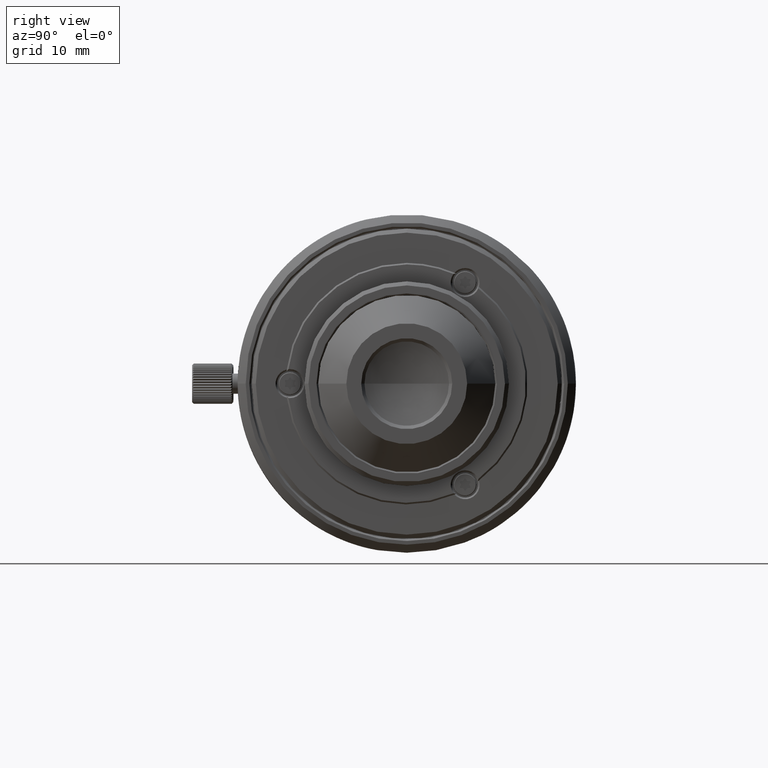
[diagram: clean part render]
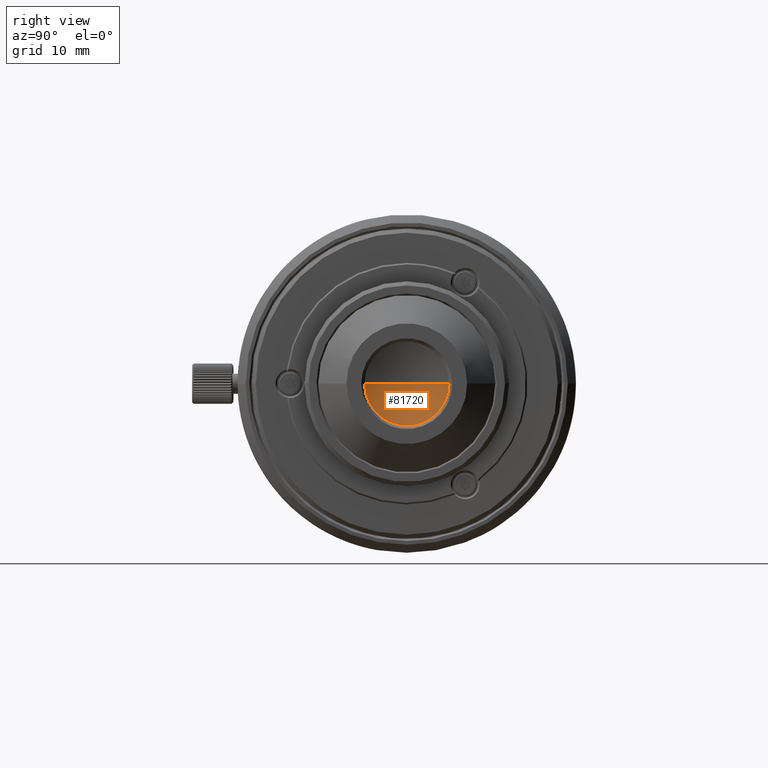
[diagram: same view with one face highlighted and labeled with its STEP entity id]
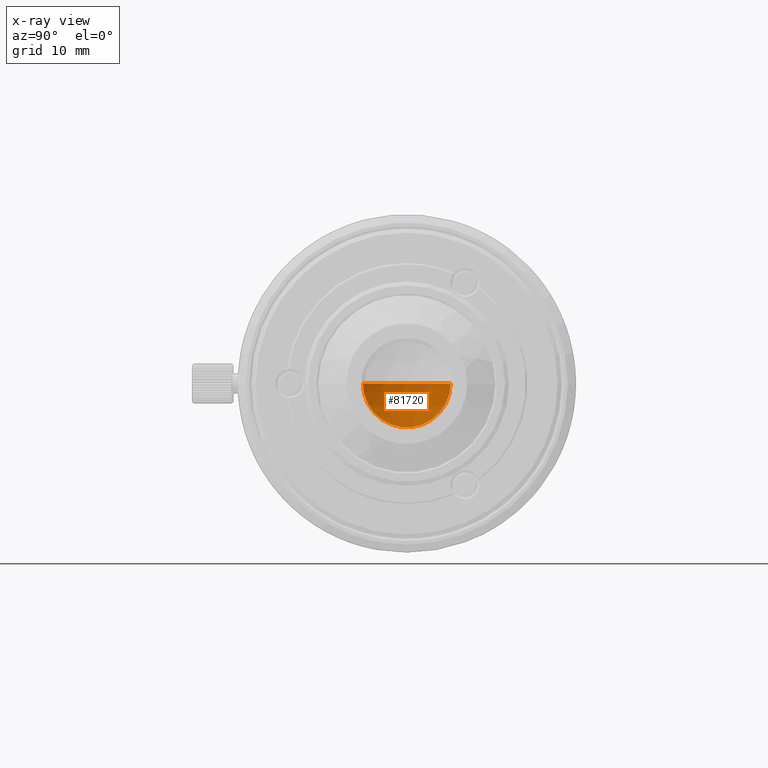
[diagram: x-ray of the same camera — body ghosted, the highlighted face saturated]
A machine part, right view. The second image highlights one B-rep face of the part: STEP entity #81720.
The next image is the same camera in x-ray: the body ghosted, the highlighted face saturated — about 0% of this face is hidden behind the body in this view.
In plain terms, the highlighted spherical surface has radius 13.49 mm.
Its self-contained STEP definition (entity closure, byte-faithful):
#5855 = EDGE_LOOP ( 'NONE', ( #55418, #110769 ) ) ;
#15008 = DIRECTION ( 'NONE',  ( 0.000000000000000000, -1.000000000000000000, 0.000000000000000000 ) ) ;
#20028 = DIRECTION ( 'NONE',  ( -0.9147516679024271236, -0.4040165665783121418, 0.000000000000000000 ) ) ;
#24823 = VERTEX_POINT ( 'NONE', #29355 ) ;
#29355 = CARTESIAN_POINT ( 'NONE',  ( -1.312448687499999878, 5.450183483150000008, 0.000000000000000000 ) ) ;
#31799 = AXIS2_PLACEMENT_3D ( 'NONE', #45709, #125895, #15008 ) ;
#32168 = CIRCLE ( 'NONE', #123943, 13.48999999999999844 ) ;
#32974 = AXIS2_PLACEMENT_3D ( 'NONE', #35248, #89758, #70367 ) ;
#35248 = CARTESIAN_POINT ( 'NONE',  ( 11.02755131249999998, -2.411911883147999610E-14, 0.000000000000000000 ) ) ;
#45709 = CARTESIAN_POINT ( 'NONE',  ( -1.312448687499999878, -2.411911883147999610E-14, 0.000000000000000000 ) ) ;
#46775 = CIRCLE ( 'NONE', #31799, 5.450183483150000008 ) ;
#47976 = CARTESIAN_POINT ( 'NONE',  ( -1.312448687499999878, -5.450183483150000008, 0.000000000000000000 ) ) ;
#50789 = VERTEX_POINT ( 'NONE', #47976 ) ;
#55418 = ORIENTED_EDGE ( 'NONE', *, *, #127959, .F. ) ;
#70367 = DIRECTION ( 'NONE',  ( 0.000000000000000000, 1.000000000000000000, 0.000000000000000000 ) ) ;
#81720 = ADVANCED_FACE ( 'NONE', ( #82691 ), #90418, .F. ) ;
#82691 = FACE_OUTER_BOUND ( 'NONE', #5855, .T. ) ;
#87675 = CARTESIAN_POINT ( 'NONE',  ( 11.02755131249999998, -2.411911883147999610E-14, 0.000000000000000000 ) ) ;
#89758 = DIRECTION ( 'NONE',  ( 0.000000000000000000, 0.000000000000000000, -1.000000000000000000 ) ) ;
#90418 = SPHERICAL_SURFACE ( 'NONE', #32974, 13.49000000000000021 ) ;
#110769 = ORIENTED_EDGE ( 'NONE', *, *, #122792, .T. ) ;
#122792 = EDGE_CURVE ( 'NONE', #50789, #24823, #46775, .T. ) ;
#123943 = AXIS2_PLACEMENT_3D ( 'NONE', #87675, #130928, #20028 ) ;
#125895 = DIRECTION ( 'NONE',  ( 1.000000000000000000, 0.000000000000000000, 0.000000000000000000 ) ) ;
#127959 = EDGE_CURVE ( 'NONE', #50789, #24823, #32168, .T. ) ;
#130928 = DIRECTION ( 'NONE',  ( 0.000000000000000000, 0.000000000000000000, -1.000000000000000000 ) ) ;